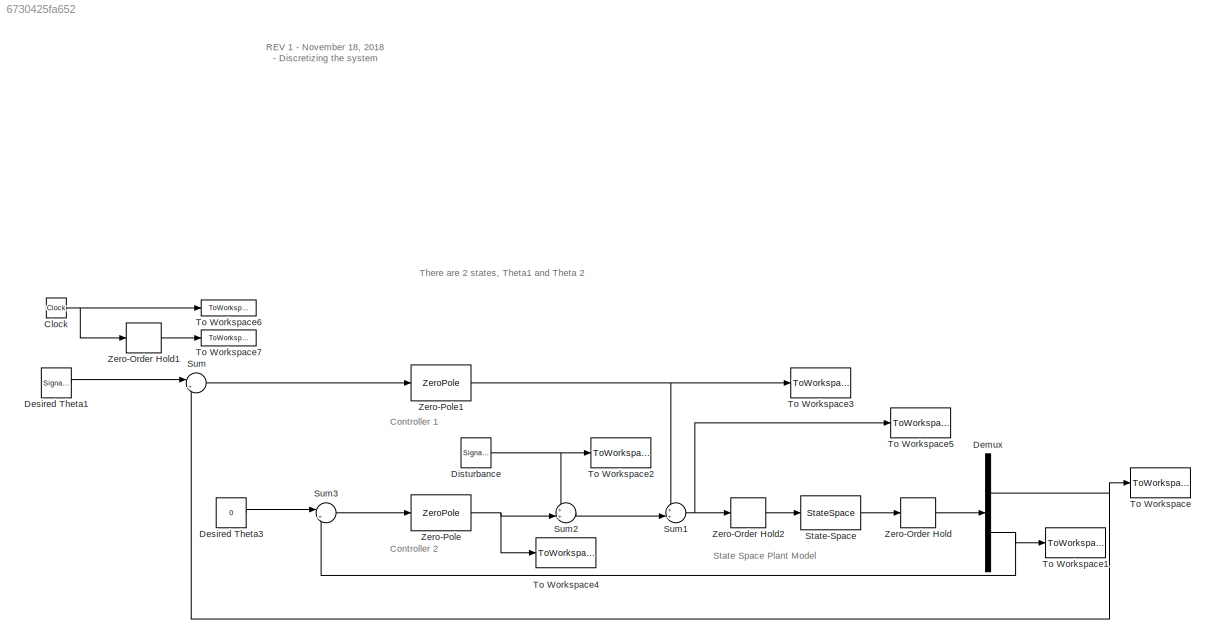
MODEL slx_6730425fa652
KIND model
CONFIG AbsTol = auto
CONFIG EnableMultiTasking = off
CONFIG FixedStep = auto
CONFIG MaxStep = auto
CONFIG MinStep = auto
CONFIG RelTol = 1e-3
CONFIG SampleTimeConstraint = Unconstrained
CONFIG Solver = VariableStepAuto
CONFIG SolverName = VariableStepAuto
CONFIG StartTime = 0.0
CONFIG StopTime = T_STOP
BLOCK [Clock] Clock
BLOCK [Demux] Demux
  DisplayOption = bar
  Outputs = 2
  Ports = [1, 2]
BLOCK [SignalGenerator] Desired Theta1
  Amplitude = theta1_cmd_A
  Frequency = theta1_cmd_f
  Ports = [0, 1]
BLOCK [Constant] Desired Theta3
  Value = 0
BLOCK [SignalGenerator] Disturbance 
  Amplitude = A_dist
  Frequency = f_dist
  Ports = [0, 1]
BLOCK [StateSpace] State-Space
  A = Ac
  B = Bc
  C = Cc
  ContinuousStateAttributes = 'Theta'
  D = Dc
  InitialCondition = [0; 0; 0.05; 0]
  Ports = [1, 1]
BLOCK [Sum] Sum
  IconShape = round
  InputSameDT = off
  Inputs = |+-
  OutDataTypeStr = Inherit: Inherit via internal rule
  Ports = [2, 1]
  SaturateOnIntegerOverflow = off
BLOCK [Sum] Sum1
  IconShape = round
  InputSameDT = off
  Inputs = ++|
  OutDataTypeStr = Inherit: Inherit via internal rule
  Ports = [2, 1]
  SaturateOnIntegerOverflow = off
BLOCK [Sum] Sum2
  IconShape = round
  InputSameDT = off
  Inputs = ++|
  OutDataTypeStr = Inherit: Inherit via internal rule
  Ports = [2, 1]
  SaturateOnIntegerOverflow = off
BLOCK [Sum] Sum3
  IconShape = round
  InputSameDT = off
  Inputs = |+-
  OutDataTypeStr = Inherit: Inherit via internal rule
  Ports = [2, 1]
  SaturateOnIntegerOverflow = off
BLOCK [ToWorkspace] To Workspace
  FixptAsFi = on
  MaxDataPoints = inf
  Ports = [1]
  SampleTime = -1
  Save2DSignal = 3-D array (concatenate along third dimension)
  VariableName = theta1
BLOCK [ToWorkspace] To Workspace1
  FixptAsFi = on
  MaxDataPoints = inf
  Ports = [1]
  SampleTime = -1
  Save2DSignal = 3-D array (concatenate along third dimension)
  VariableName = theta2
BLOCK [ToWorkspace] To Workspace2
  FixptAsFi = on
  MaxDataPoints = inf
  Ports = [1]
  SampleTime = -1
  Save2DSignal = 3-D array (concatenate along third dimension)
  VariableName = disturbance
BLOCK [ToWorkspace] To Workspace3
  FixptAsFi = on
  MaxDataPoints = inf
  Ports = [1]
  SampleTime = -1
  Save2DSignal = 3-D array (concatenate along third dimension)
  VariableName = control1
BLOCK [ToWorkspace] To Workspace4
  FixptAsFi = on
  MaxDataPoints = inf
  Ports = [1]
  SampleTime = -1
  Save2DSignal = 3-D array (concatenate along third dimension)
  VariableName = control2
BLOCK [ToWorkspace] To Workspace5
  FixptAsFi = on
  MaxDataPoints = inf
  Ports = [1]
  SampleTime = -1
  Save2DSignal = 3-D array (concatenate along third dimension)
  VariableName = intoModel
BLOCK [ToWorkspace] To Workspace6
  FixptAsFi = on
  MaxDataPoints = inf
  Ports = [1]
  SampleTime = -1
  Save2DSignal = 3-D array (concatenate along third dimension)
  VariableName = t
BLOCK [ToWorkspace] To Workspace7
  FixptAsFi = on
  MaxDataPoints = inf
  Ports = [1]
  SampleTime = -1
  Save2DSignal = 3-D array (concatenate along third dimension)
  VariableName = ts
BLOCK [ZeroOrderHold] Zero-Order Hold
  SampleTime = Ts
BLOCK [ZeroOrderHold] Zero-Order Hold1
  SampleTime = Ts
BLOCK [ZeroOrderHold] Zero-Order Hold2
  SampleTime = Ts
BLOCK [ZeroPole] Zero-Pole
  Gain = k2
  Poles = p2
  Zeros = z2
BLOCK [ZeroPole] Zero-Pole1
  Gain = k1
  Poles = p1
  Zeros = z1
ANNOTATION (root): Controller 1
ANNOTATION (root): Controller 2
ANNOTATION (root): REV 1 - November 18, 2018 - Discretizing the system
ANNOTATION (root): State Space Plant Model
ANNOTATION (root): There are 2 states, Theta1 and Theta 2
NET Clock:1 -> To Workspace6:1, Zero-Order Hold1:1
NET Demux:1 -> Sum:2, To Workspace:1
NET Demux:2 -> Sum3:2, To Workspace1:1
LINE Desired Theta1:1 -> Sum:1
LINE Desired Theta3:1 -> Sum3:1
NET Disturbance :1 -> Sum2:1, To Workspace2:1
LINE State-Space:1 -> Zero-Order Hold:1
NET Sum1:1 -> To Workspace5:1, Zero-Order Hold2:1
LINE Sum2:1 -> Sum1:2
LINE Sum3:1 -> Zero-Pole:1
LINE Sum:1 -> Zero-Pole1:1
LINE Zero-Order Hold1:1 -> To Workspace7:1
LINE Zero-Order Hold2:1 -> State-Space:1
LINE Zero-Order Hold:1 -> Demux:1
NET Zero-Pole1:1 -> Sum1:1, To Workspace3:1
NET Zero-Pole:1 -> Sum2:2, To Workspace4:1
note: NET lines group one-source signal fan-out (src -> all destinations, sorted); 1:1 wires keep LINE
